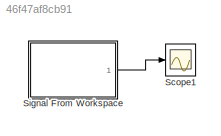
MODEL slx_46f47af8cb91
KIND model
BLOCK [Scope] Scope1
  DataFormat = StructureWithTime
  Floating = off
  LimitDataPoints = off
  NumInputPorts = 1
  Ports = [1]
  SampleTime = 0
  SaveName = ScopeData1
  ShowLegends = off
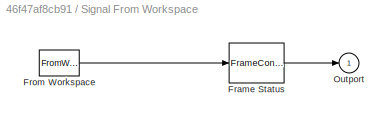
BLOCK [SubSystem] Signal From Workspace
  AncestorBlock = dspsrcs4/Signal From\nWorkspace
  FunctionWithSeparateData = off
  MaskHideContents = off
  MinAlgLoopOccurrences = off
  Opaque = off
  Ports = [0, 1]
  PropExecContextOutsideSubsystem = off
  RTWSystemCode = Auto
  RequestExecContextInheritance = off
BLOCK [FrameConversion] Signal From Workspace/Frame Status
  OutFrame = Sample-based
  Ports = [1, 1]
BLOCK [FromWorkspace] Signal From Workspace/From Workspace
  Interpolate = off
  OutputAfterFinalValue = Cyclic repetition
  SampleTime = Ts
  VariableName = s
BLOCK [Outport] Signal From Workspace/Outport
  IconDisplay = Port number
  InitialOutput = 0
LINE Signal From Workspace:1 -> Scope1:1
